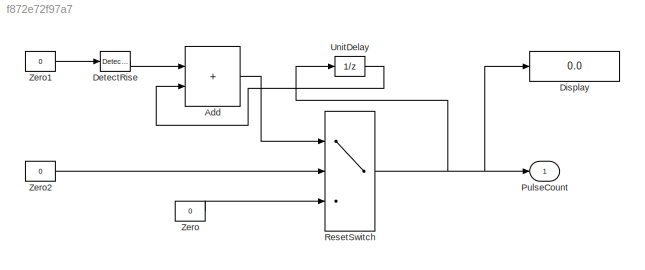
MODEL slx_f872e72f97a7
KIND model
CONFIG AbsTol = auto
CONFIG EnableMultiTasking = off
CONFIG FixedStep = auto
CONFIG MaxStep = auto
CONFIG MinStep = auto
CONFIG RelTol = 1e-3
CONFIG SampleTimeConstraint = Unconstrained
CONFIG SolverName = VariableStepAuto
CONFIG StartTime = 0.0
CONFIG StopTime = 10.0
BLOCK [Sum] Add
  IconShape = rectangular
BLOCK [Reference] DetectRise  REF=simulink/Logic and Bit
Operations/Detect Rise
Positive
  SourceBlock = simulink/Logic and Bit\nOperations/Detect Rise\nPositive
  SourceType = Detect Rise Positive
BLOCK [Display] Display
  Decimation = 1
BLOCK [Outport] PulseCount
BLOCK [Switch] ResetSwitch
  Criteria = u2 ~= 0
  InputSameDT = off
  SaturateOnIntegerOverflow = off
  Threshold = 0.5
BLOCK [UnitDelay] UnitDelay
  HasFrameUpgradeWarning = on
  SampleTime = -1
BLOCK [Constant] Zero
  Value = 0
BLOCK [Constant] Zero1
  Value = 0
BLOCK [Constant] Zero2
  Value = 0
LINE Add:1 -> ResetSwitch:1
LINE DetectRise:1 -> Add:1
NET ResetSwitch:1 -> Display:1, PulseCount:1, UnitDelay:1
LINE UnitDelay:1 -> Add:2
LINE Zero1:1 -> DetectRise:1
LINE Zero2:1 -> ResetSwitch:2
LINE Zero:1 -> ResetSwitch:3
note: NET lines group one-source signal fan-out (src -> all destinations, sorted); 1:1 wires keep LINE
